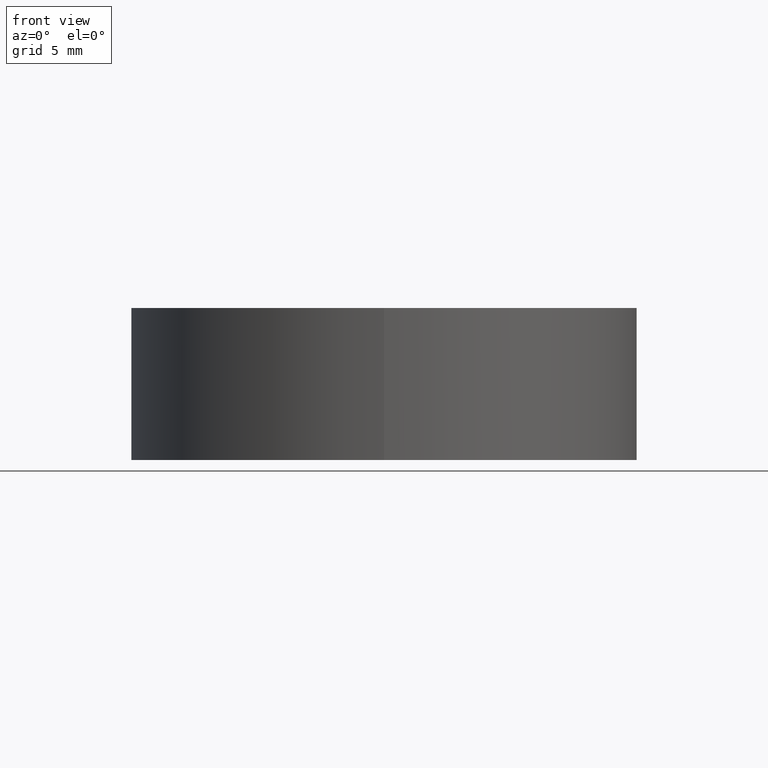
[diagram: clean part render]
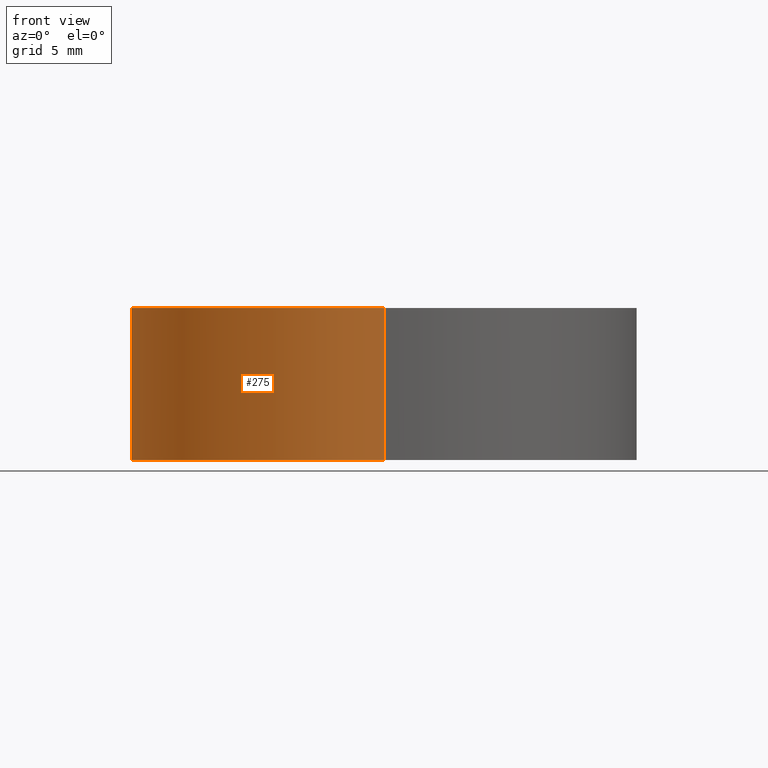
[diagram: same view with one face highlighted and labeled with its STEP entity id]
A machine part, front view. The second image highlights one B-rep face of the part: STEP entity #275.
In plain terms, the highlighted cylindrical surface (partial cylindrical patch) has radius 20 mm, axis along (0, 0, -1).
Its self-contained STEP definition (entity closure, byte-faithful):
#32=CARTESIAN_POINT('',(0.E0,1.231994679942E-14,0.E0));
#33=DIRECTION('',(0.E0,0.E0,-1.E0));
#34=DIRECTION('',(0.E0,-1.E0,0.E0));
#35=AXIS2_PLACEMENT_3D('',#32,#33,#34);
#72=DIRECTION('',(0.E0,0.E0,-1.E0));
#73=VECTOR('',#72,1.2E1);
#74=CARTESIAN_POINT('',(0.E0,-2.E1,0.E0));
#75=LINE('',#74,#73);
#79=DIRECTION('',(0.E0,0.E0,-1.E0));
#80=VECTOR('',#79,1.2E1);
#81=CARTESIAN_POINT('',(0.E0,2.E1,0.E0));
#82=LINE('',#81,#80);
#94=CARTESIAN_POINT('',(0.E0,1.231994679942E-14,-1.2E1));
#95=DIRECTION('',(0.E0,0.E0,1.E0));
#96=DIRECTION('',(0.E0,1.E0,0.E0));
#97=AXIS2_PLACEMENT_3D('',#94,#95,#96);
#198=CARTESIAN_POINT('',(0.E0,-2.E1,0.E0));
#199=CARTESIAN_POINT('',(0.E0,2.E1,0.E0));
#200=VERTEX_POINT('',#198);
#201=VERTEX_POINT('',#199);
#206=CARTESIAN_POINT('',(0.E0,2.E1,-1.2E1));
#207=VERTEX_POINT('',#206);
#208=CARTESIAN_POINT('',(0.E0,-2.E1,-1.2E1));
#209=VERTEX_POINT('',#208);
#261=CARTESIAN_POINT('',(0.E0,1.231994679942E-14,6.E-1));
#262=DIRECTION('',(0.E0,0.E0,-1.E0));
#263=DIRECTION('',(0.E0,-1.E0,0.E0));
#264=AXIS2_PLACEMENT_3D('',#261,#262,#263);
#265=CYLINDRICAL_SURFACE('',#264,2.E1);
#267=ORIENTED_EDGE('',*,*,#266,.F.);
#268=ORIENTED_EDGE('',*,*,#243,.F.);
#270=ORIENTED_EDGE('',*,*,#269,.T.);
#272=ORIENTED_EDGE('',*,*,#271,.F.);
#273=EDGE_LOOP('',(#267,#268,#270,#272));
#274=FACE_OUTER_BOUND('',#273,.F.);
#36=CIRCLE('',#35,2.E1);
#98=CIRCLE('',#97,2.E1);
#243=EDGE_CURVE('',#200,#201,#36,.T.);
#266=EDGE_CURVE('',#201,#207,#82,.T.);
#269=EDGE_CURVE('',#200,#209,#75,.T.);
#271=EDGE_CURVE('',#207,#209,#98,.T.);
#275=ADVANCED_FACE('',(#274),#265,.T.);